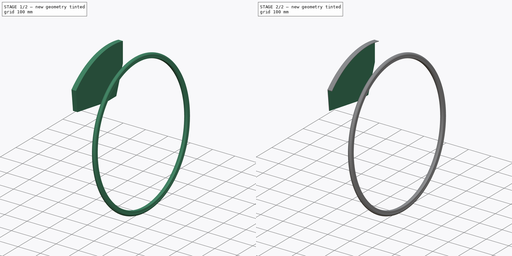
[diagram: build sequence overview — one tinted view per stage of 2, left to right]
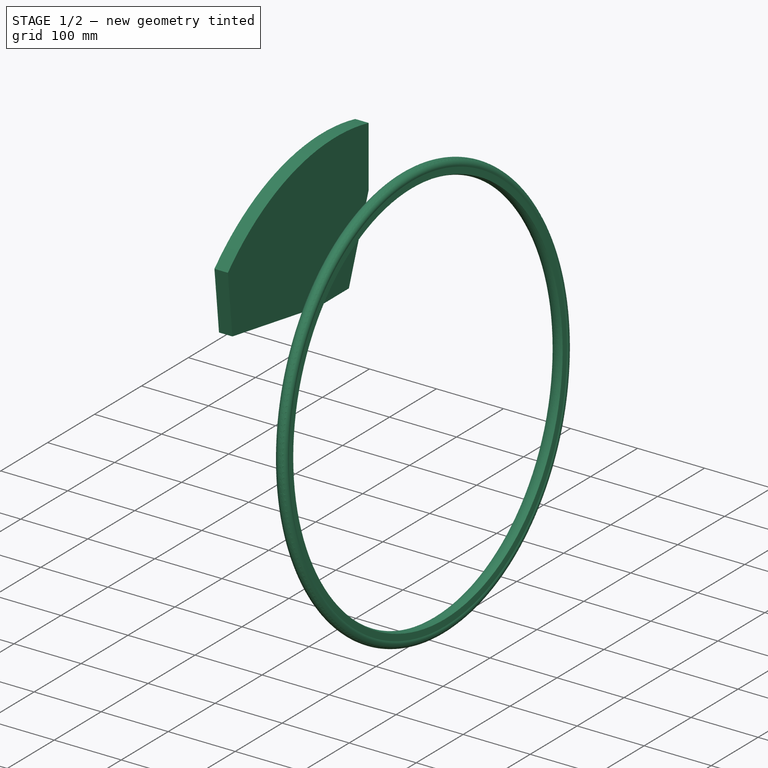
[diagram: stage 1 of 2 — iso view after this stage's code; geometry added in this stage tinted green]
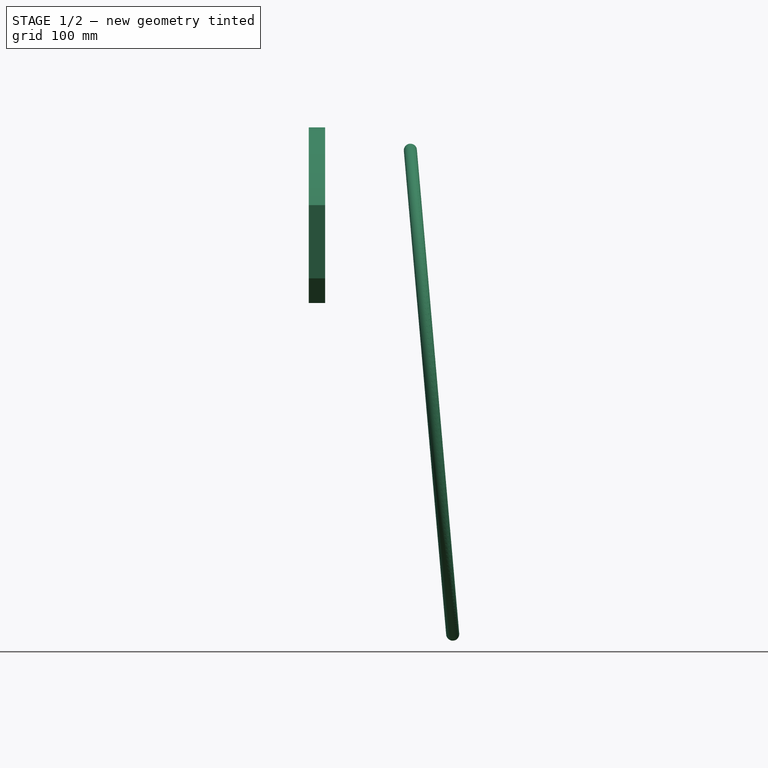
[diagram: stage 1 of 2 — front view after this stage's code; geometry added in this stage tinted green]
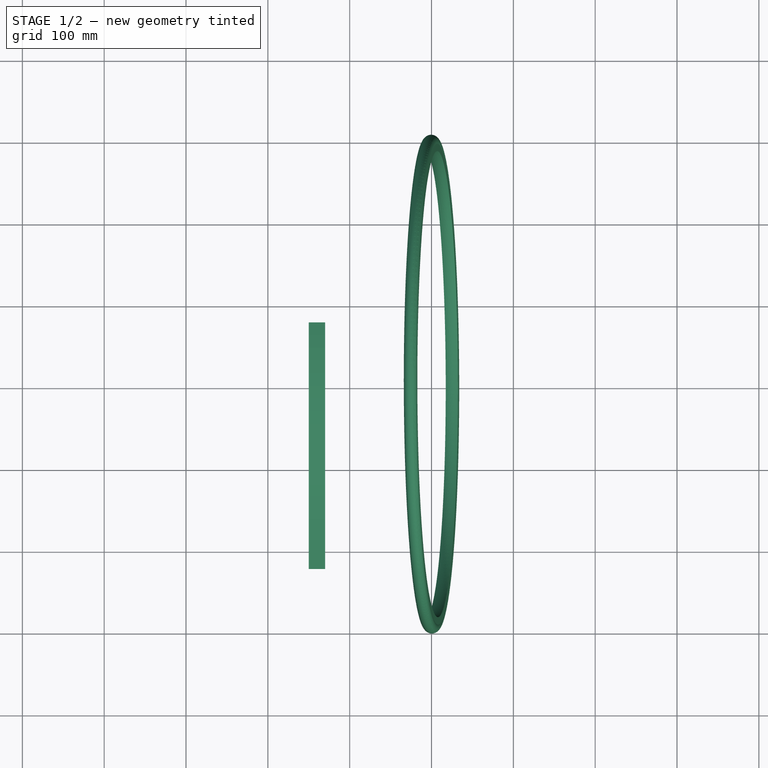
[diagram: stage 1 of 2 — top view after this stage's code; geometry added in this stage tinted green]
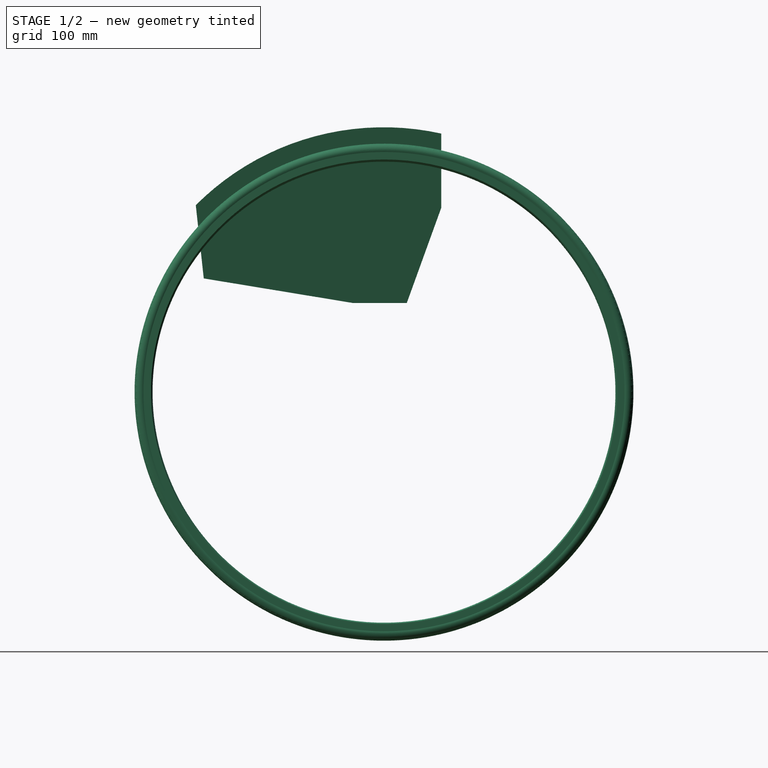
[diagram: stage 1 of 2 — right view after this stage's code; geometry added in this stage tinted green]
FCSTD DOCUMENT  (FreeCAD 2021.0205R23662 +3201 (Git))
Label: ToyWheelchair_01
License: All rights reserved
LicenseURL: http://en.wikipedia.org/wiki/All_rights_reserved
objects: Sketcher::SketchObject×5, PartDesign::Body×3, PartDesign::ShapeBinder×2, PartDesign::Plane×1, PartDesign::Pad×1, PartDesign::Thickness×1, PartDesign::Revolution×1
note: 20 computed .brp shape members not serialized (recipe doc carries the construction recipe); baked Part::Feature solids carry a one-line shape summary decoded from their .brp

FEATURE [Sketcher::SketchObject] Sketch001  label="Sketch.Wheel.Angle"
  FullyConstrained = true
  MapMode = 5
  Placement = pos=(0,0,0) rot=(1,0,0;1.5708rad)
  Support = -> [XZ_Plane]
  expr: Constraints[6] = 24 * 25.4
  sketch-geometry (3):
    g0: LineSegment StartX=326.565 StartY=0 StartZ=0 EndX=273.435 EndY=607.28 EndZ=0
    g1: Circle [constr] CenterX=300 CenterY=303.64 CenterZ=0 NormalX=0 NormalY=0 NormalZ=1 AngleXU=0 Radius=304.8
    g2: GeomPoint [constr] X=273.435 Y=607.28 Z=0
  constraints (8):
    c: PointOnObject(g0,g-1)
    c: PointOnObject(g1,g0)
    c: PointOnObject(g0,g1)
    c: PointOnObject(g0,g1)
    c: DistanceX(g-1,g1) = 300
    c: Angle(g-2,g0) = 0.0872665
    c: Distance(g0) = 609.6
    c: Coincident(g2,g0)
FEATURE [Sketcher::SketchObject] Sketch  label="MASTER.Sketch"
  ExternalGeometry = -> [Sketch001]
  FullyConstrained = false
  MapMode = 5
  Placement = pos=(0,0,0) rot=(0.57735,0.57735,0.57735;2.0944rad)
  Support = -> [YZ_Plane]
  expr: Constraints[7] = 24 * 25.4
  sketch-geometry (21):
    g0: Circle CenterX=0 CenterY=303.64 CenterZ=0 NormalX=0 NormalY=0 NormalZ=1 AngleXU=0 Radius=2.83622
    g1: Ellipse CenterX=0 CenterY=303.64 CenterZ=0 NormalX=0 NormalY=0 NormalZ=1 MajorRadius=304.8 MinorRadius=303.64 AngleXU=-3.14159
    g2: LineSegment [constr] StartX=-304.8 StartY=303.64 StartZ=0 EndX=304.8 EndY=303.64 EndZ=0
    g3: LineSegment [constr] StartX=2.09e-13 StartY=-2e-16 StartZ=0 EndX=-2.09e-13 EndY=607.28 EndZ=0
    g4: GeomPoint [constr] X=-26.5651 Y=303.64 Z=0
    g5: GeomPoint [constr] X=26.5651 Y=303.64 Z=0
    g6: Circle CenterX=-450 CenterY=60 CenterZ=0 NormalX=0 NormalY=0 NormalZ=1 AngleXU=0 Radius=60
    g7: LineSegment StartX=1.057e-13 StartY=150 StartZ=0 EndX=-450 EndY=150 EndZ=0
    g8: LineSegment StartX=-450 StartY=60 StartZ=0 EndX=-450 EndY=150 EndZ=0
    g9: LineSegment StartX=-204.998 StartY=498.093 StartZ=0 EndX=95.0015 EndY=498.093 EndZ=0
    g10: LineSegment StartX=95.0015 StartY=498.093 StartZ=0 EndX=95.0015 EndY=488.093 EndZ=0
    g11: LineSegment StartX=95.0015 StartY=488.093 StartZ=0 EndX=-204.998 EndY=488.093 EndZ=0
    g12: LineSegment StartX=-204.998 StartY=488.093 StartZ=0 EndX=-204.998 EndY=498.093 EndZ=0
    g13: LineSegment StartX=98.3266 StartY=527.047 StartZ=0 EndX=150.421 EndY=822.489 EndZ=0
    g14: LineSegment StartX=150.421 StartY=822.489 StartZ=0 EndX=160.269 EndY=820.753 EndZ=0
    g15: LineSegment StartX=160.269 StartY=820.753 StartZ=0 EndX=108.175 EndY=525.31 EndZ=0
    g16: LineSegment StartX=108.175 StartY=525.31 StartZ=0 EndX=98.3266 EndY=527.047 EndZ=0
    g17: LineSegment StartX=304.8 StartY=303.64 StartZ=0 EndX=0 EndY=303.64 EndZ=0
    g18: LineSegment StartX=0 StartY=303.64 StartZ=0 EndX=0 EndY=607.28 EndZ=0
    g19: LineSegment StartX=0 StartY=607.28 StartZ=0 EndX=304.8 EndY=607.28 EndZ=0
    g20: LineSegment StartX=304.8 StartY=607.28 StartZ=0 EndX=304.8 EndY=303.64 EndZ=0
  constraints (45):
    c: PointOnObject(g0,g-2)
    c: InternalAlignment(g2-g5 -> g1) x4
    c: Coincident(g1,g0)
    c: PointOnObject(g-1,g1)
    c: Distance(g2) = 609.6
    c: Coincident(g3,g-3)
    c: Tangent(g6,g-1)
    c: PointOnObject(g7,g3)
    c: Horizontal(g7)
    c: Coincident(g8,g6)
    c: Coincident(g8,g7)
    c: Vertical(g8)
    c: Coincident(g9,g10)
    c: Coincident(g10,g11)
    c: Coincident(g11,g12)
    c: Coincident(g12,g9)
    c: Horizontal(g9)
    c: Horizontal(g11)
    c: Vertical(g10)
    c: Vertical(g12)
    c: Coincident(g13,g14)
    c: Coincident(g14,g15)
    c: Coincident(g15,g16)
    c: Coincident(g16,g13)
    c: Equal(g10,g16)
    c: Perpendicular(g16,g13)
    c: Perpendicular(g14,g15)
    c: Perpendicular(g16,g15)
    c: Distance(g16) = 10
    c: Angle(g3,g13) = 2.96706
    c: Distance(g15) = 300
    c: Distance(g11) = 300
    c: Diameter(g6) = 120
    c: DistanceX(g7,g7) = 450
    c: DistanceY(g-1,g7) = 150
    c: Coincident(g17,g18)
    c: Coincident(g18,g19)
    c: Coincident(g19,g20)
    c: Coincident(g20,g17)
    c: Horizontal(g17)
    c: Horizontal(g19)
    c: Vertical(g18)
    c: Vertical(g20)
    c: Coincident(g17,g2)
    c: Coincident(g18,g-3)
FEATURE [PartDesign::Body] Body  label="MASTER.Body"
  AutoGroupSolids = false
  ExportMode = 0
  Group = -> [Sketch001,Sketch]
  Origin = -> Origin
  _ExportChildren = -> [Sketch001,Sketch]
  _GroupVersion = 1
FEATURE [PartDesign::ShapeBinder] ShapeBinder
  Placement = pos=(0,0,0) rot=(0.57735,0.57735,0.57735;2.0944rad)
  Support = -> [Sketch]
  TraceSupport = false
FEATURE [PartDesign::Plane] DatumPlane
  AttachmentOffset = pos=(0,0,150) rot=(0,0,1;0rad)
  Length = 814.8
  MapMode = 5
  MinimumLength = 10
  MinimumWidth = 10
  Placement = pos=(150,-3.33e-14,3.33e-14) rot=(0.57735,0.57735,0.57735;2.0944rad)
  ResizeMode = 0
  Support = -> [YZ_Plane001]
  Width = 880.598
FEATURE [Sketcher::SketchObject] Sketch002
  ExternalGeometry = -> [ShapeBinder]
  FullyConstrained = false
  MapMode = 5
  Placement = pos=(150,-3.33e-14,3.33e-14) rot=(0.57735,0.57735,0.57735;2.0944rad)
  Support = -> [DatumPlane]
  sketch-geometry (21):
    g0: Ellipse [constr] CenterX=0 CenterY=303.64 CenterZ=0 NormalX=0 NormalY=0 NormalZ=1 MajorRadius=304.8 MinorRadius=303.64 AngleXU=0
    g1: LineSegment [constr] StartX=304.8 StartY=303.64 StartZ=0 EndX=-304.8 EndY=303.64 EndZ=0
    g2: LineSegment [constr] StartX=5.66e-14 StartY=607.28 StartZ=0 EndX=-5.66e-14 EndY=2.274e-13 EndZ=0
    g3: GeomPoint [constr] X=26.5651 Y=303.64 Z=0
    g4: GeomPoint [constr] X=-26.5651 Y=303.64 Z=0
    g5: LineSegment [constr] StartX=0 StartY=303.64 StartZ=0 EndX=-215.812 EndY=518.061 EndZ=0
    g6: LineSegment [constr] StartX=-215.812 StartY=518.061 StartZ=0 EndX=-230 EndY=532.157 EndZ=0
    g7: LineSegment [constr] StartX=0 StartY=303.64 StartZ=0 EndX=65.6749 EndY=600.148 EndZ=0
    g8: LineSegment [constr] StartX=65.6749 StartY=600.148 StartZ=0 EndX=70 EndY=619.675 EndZ=0
    g9: GeomPoint [constr] X=70 Y=619.675 Z=0
    g10: GeomPoint [constr] X=-230 Y=532.157 Z=0
    g11: ArcOfEllipse CenterX=0 CenterY=303.64 CenterZ=0 NormalX=0 NormalY=0 NormalZ=1 MajorRadius=324.434 MinorRadius=323.694 AngleXU=-0.217992 StartAngle=1.57081 EndAngle=2.57639
    g12: LineSegment [constr] StartX=316.756 StartY=233.475 StartZ=0 EndX=-316.756 EndY=373.805 EndZ=0
    g13: LineSegment [constr] StartX=70.0051 StartY=619.674 StartZ=0 EndX=-70.0051 EndY=-12.3933 EndZ=0
    g14: GeomPoint [constr] X=21.3854 Y=298.903 Z=0
    g15: GeomPoint [constr] X=-21.3854 Y=308.377 Z=0
    g16: LineSegment StartX=70 StartY=619.675 StartZ=0 EndX=70 EndY=529.049 EndZ=0
    g17: LineSegment StartX=70 StartY=529.049 StartZ=0 EndX=27.8628 EndY=412.687 EndZ=0
    g18: LineSegment StartX=27.8628 StartY=412.687 StartZ=0 EndX=-38.3235 EndY=412.687 EndZ=0
    g19: LineSegment StartX=-38.3235 StartY=412.687 StartZ=0 EndX=-220.26 EndY=442.644 EndZ=0
    g20: LineSegment StartX=-220.26 StartY=442.644 StartZ=0 EndX=-230 EndY=532.157 EndZ=0
  constraints (31):
    c: InternalAlignment(g1-g4 -> g0) x4
    c: Coincident(g0,g-7)
    c: PointOnObject(g-7,g0)
    c: PointOnObject(g-5,g0)
    c: PointOnObject(g1,g-7)
    c: Coincident(g5,g-7)
    c: PointOnObject(g5,g0)
    c: Coincident(g6,g5)
    c: Coincident(g7,g-7)
    c: PointOnObject(g7,g0)
    c: Coincident(g8,g7)
    c: Parallel(g8,g7)
    c: Parallel(g5,g6)
    c: Distance(g6) = 20
    c: Distance(g8) = 20
    c: DistanceX(g-7,g8) = 70
    c: DistanceX(g6,g-7) = 230
    c: Coincident(g9,g8)
    c: Coincident(g10,g6)
    c: InternalAlignment(g12-g15 -> g11) x4
    c: Coincident(g11,g-7)
    c: Coincident(g11,g6)
    c: Coincident(g11,g8)
    c: Coincident(g16,g11)
    c: Vertical(g16)
    c: Coincident(g17,g16)
    c: Coincident(g17,g18)
    c: Horizontal(g18)
    c: Coincident(g18,g19)
    c: Coincident(g19,g20)
    c: Coincident(g20,g11)
FEATURE [PartDesign::Pad] Pad
  ClaimChildren = false
  Direction = (1,1,1)
  Fit = 0
  FitJoin = 0
  InnerFit = 0
  InnerFitJoin = 0
  InnerTaperAngle = 0
  InnerTaperAngleRev = 0
  Length = 20
  Length2 = 100
  NewSolid = false
  Placement = pos=(150,-3.33e-14,3.33e-14) rot=(0.57735,0.57735,0.57735;2.0944rad)
  Profile = -> Sketch002
  Suppress = false
  Type = 0
FEATURE [PartDesign::Body] Body001  label="Body.SIdePanel"
  AutoGroupSolids = false
  ExportMode = 0
  Group = -> [ShapeBinder,DatumPlane,Sketch002,Pad,Thickness]
  Origin = -> Origin001
  Tip = -> Thickness
  _ExportChildren = -> [ShapeBinder,DatumPlane,Pad,Thickness]
  _GroupVersion = 1
FEATURE [PartDesign::ShapeBinder] ShapeBinder001
  Placement = pos=(0,0,0) rot=(1,0,0;1.5708rad)
  Support = -> [Sketch001]
  TraceSupport = false
FEATURE [Sketcher::SketchObject] Sketch003
  ExternalGeometry = -> [ShapeBinder001]
  FullyConstrained = true
  MapMode = 5
  Placement = pos=(0,0,0) rot=(1,0,0;1.5708rad)
  Support = -> [XZ_Plane002]
  sketch-geometry (8):
    g0: Circle [constr] CenterX=300 CenterY=303.64 CenterZ=0 NormalX=0 NormalY=0 NormalZ=1 AngleXU=0 Radius=304.8
    g1: ArcOfCircle CenterX=274.132 CenterY=599.311 CenterZ=0 NormalX=0 NormalY=0 NormalZ=1 AngleXU=0 Radius=8 StartAngle=6.01503 EndAngle=9.86747
    g2: LineSegment StartX=266.903 StartY=595.884 StartZ=0 EndX=267.707 EndY=586.703 EndZ=0
    g3: LineSegment StartX=281.846 StartY=597.191 StartZ=0 EndX=282.65 EndY=588.01 EndZ=0
    g4: ArcOfCircle CenterX=274.04 CenterY=600.369 CenterZ=0 NormalX=0 NormalY=0 NormalZ=1 AngleXU=0 Radius=15.0625 StartAngle=4.27845 EndAngle=5.32086
    g5: LineSegment [constr] StartX=267.707 StartY=586.703 StartZ=0 EndX=282.65 EndY=588.01 EndZ=0
    g6: GeomPoint [constr] X=275.178 Y=587.356 Z=0
    g7: GeomPoint [constr] X=275.352 Y=585.364 Z=0
  constraints (22):
    c: PointOnObject(g0,g-3)
    c: PointOnObject(g-3,g0)
    c: PointOnObject(g-3,g0)
    c: PointOnObject(g-3,g1)
    c: Coincident(g4,g3)
    c: Coincident(g4,g2)
    c: Symmetric(g2,g3,g-3)
    c: Parallel(g2,g-3)
    c: Parallel(g3,g-3)
    c: PointOnObject(g4,g-3)
    c: Diameter(g1) = 16
    c: Coincident(g5,g2)
    c: Coincident(g5,g3)
    c: PointOnObject(g6,g-3)
    c: PointOnObject(g6,g5)
    c: PointOnObject(g7,g4)
    c: PointOnObject(g7,g-3)
    c: Distance(g6,g7) = 2
    c: Distance(g2,g3) = 15
    c: Distance(g7,g1) = 14
    c: Coincident(g1,g3)
    c: Coincident(g1,g2)
FEATURE [Sketcher::SketchObject] Sketch004
  ExternalGeometry = -> [ShapeBinder001]
  FullyConstrained = true
  MapMode = 5
  Placement = pos=(0,0,0) rot=(1,0,0;1.5708rad)
  Support = -> [XZ_Plane002]
  sketch-geometry (2):
    g0: Circle [constr] CenterX=300 CenterY=303.64 CenterZ=0 NormalX=0 NormalY=0 NormalZ=1 AngleXU=0 Radius=304.8
    g1: LineSegment StartX=300 StartY=303.64 StartZ=0 EndX=603.64 EndY=330.205 EndZ=0
  constraints (6):
    c: PointOnObject(g0,g-3)
    c: PointOnObject(g-3,g0)
    c: PointOnObject(g-3,g0)
    c: Coincident(g1,g0)
    c: PointOnObject(g1,g0)
    c: Perpendicular(g-3,g1)
FEATURE [PartDesign::Revolution] Revolution
  Angle = 360
  Axis = (0.996195,0,0.0871557)
  Base = (300,6.74e-14,303.64)
  ClaimChildren = false
  Fit = 0
  FitJoin = 0
  InnerFit = 0
  InnerFitJoin = 0
  NewSolid = false
  Placement = pos=(0,0,0) rot=(1,0,0;1.5708rad)
  Profile = -> Sketch003
  ReferenceAxis = -> Sketch004 [Edge1]
  Reversed = true
  Suppress = false
FEATURE [PartDesign::Body] Body002  label="Body.Wheel"
  AutoGroupSolids = false
  ExportMode = 0
  Group = -> [ShapeBinder001,Sketch003,Sketch004,Revolution]
  Origin = -> Origin002
  Tip = -> Revolution
  _ExportChildren = -> [ShapeBinder001,Sketch004,Revolution]
  _GroupVersion = 1
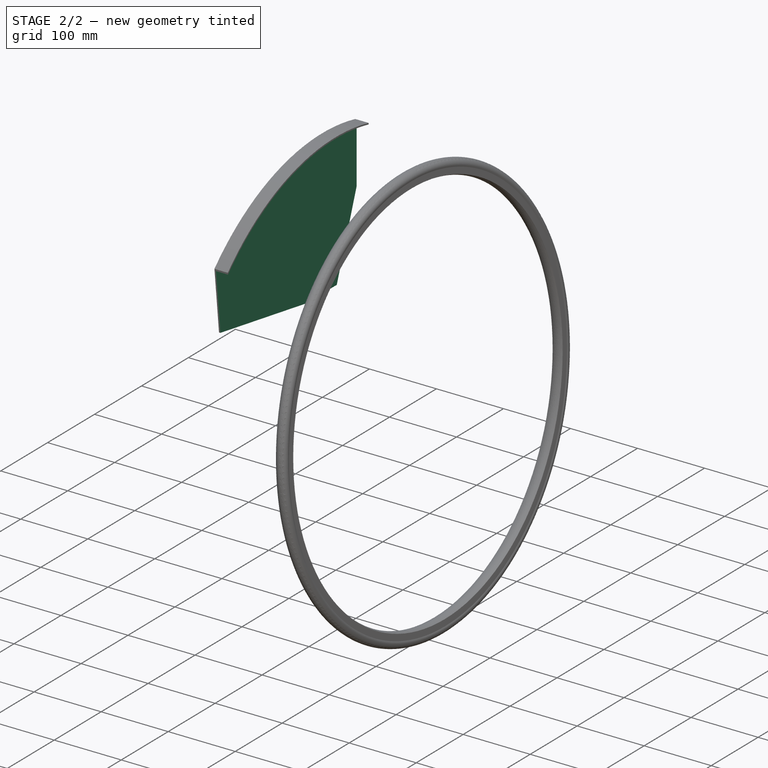
[diagram: stage 2 of 2 — iso view after this stage's code; geometry added in this stage tinted green]
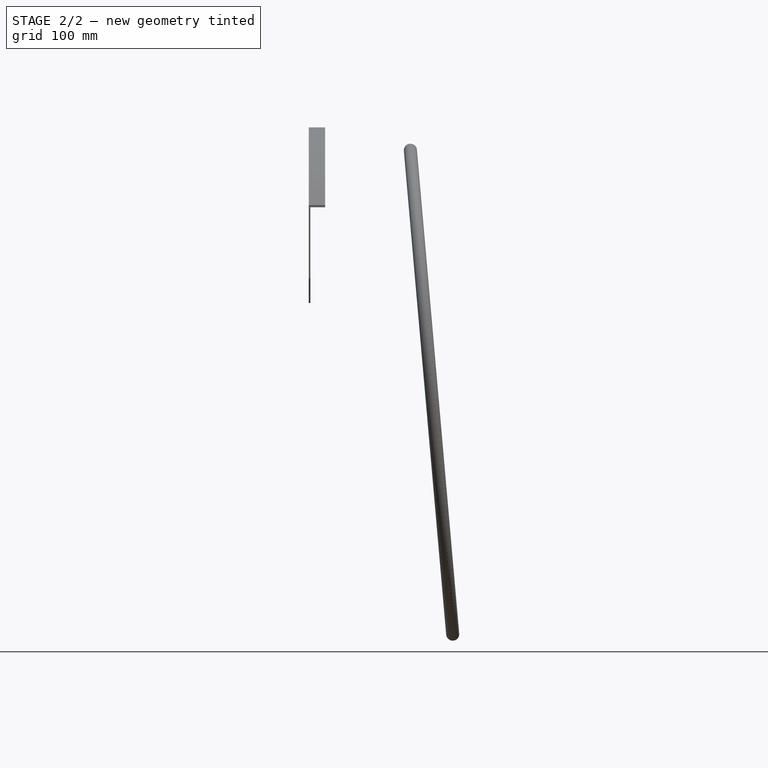
[diagram: stage 2 of 2 — front view after this stage's code; geometry added in this stage tinted green]
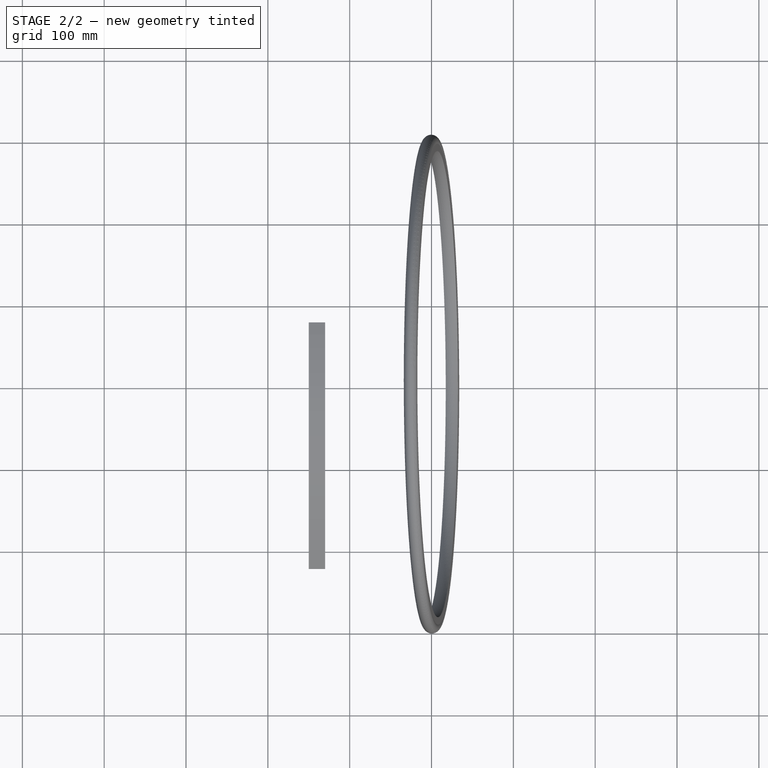
[diagram: stage 2 of 2 — top view after this stage's code; geometry added in this stage tinted green]
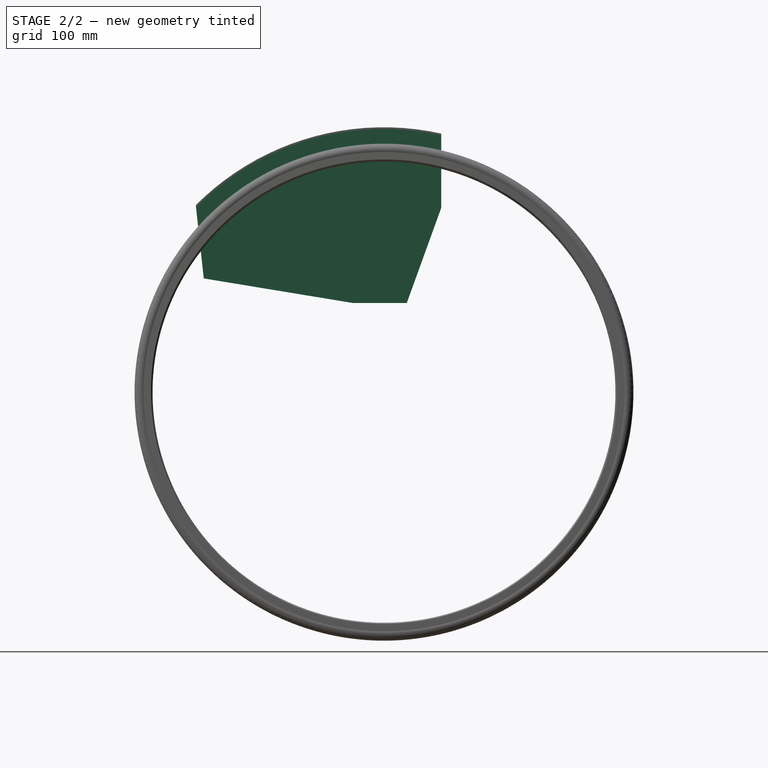
[diagram: stage 2 of 2 — right view after this stage's code; geometry added in this stage tinted green]
FEATURE [PartDesign::Thickness] Thickness
  Base = -> Pad [Face8,Face2,Face3,Face4,Face5,Face6]
  BaseFeature = -> Pad
  Intersection = false
  Join = 1
  Mode = 0
  NewSolid = false
  Reversed = true
  SupportTransform = false
  Suppress = false
  Value = 2
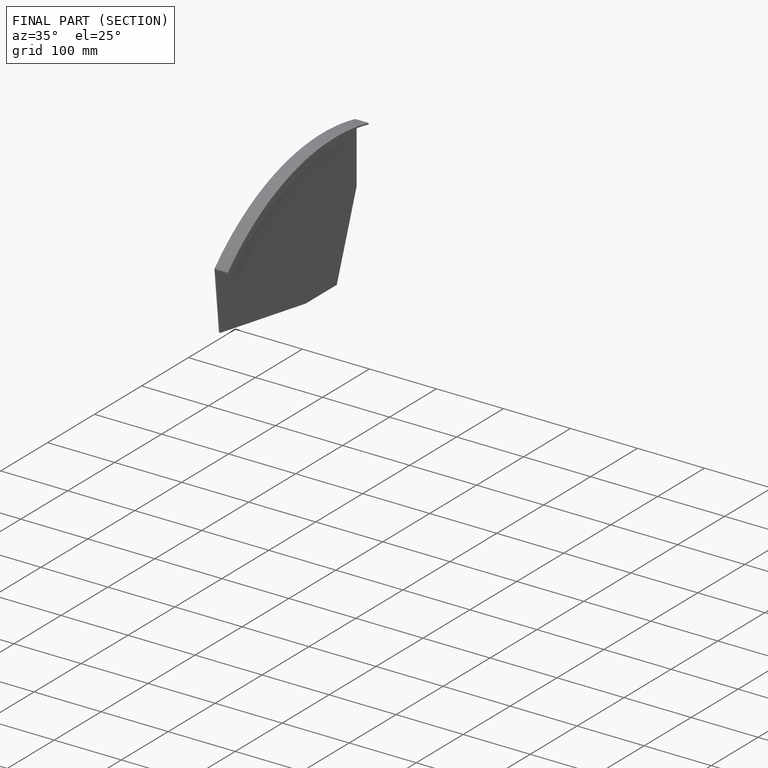
[diagram: finished part — half-section view (interior)]
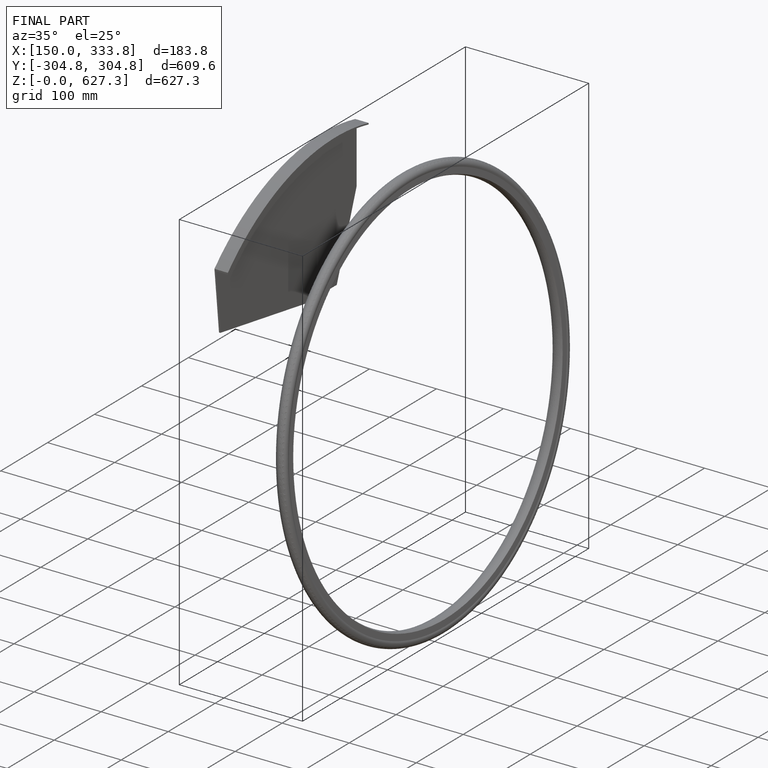
[diagram: finished part — iso view with bounding-box wireframe]
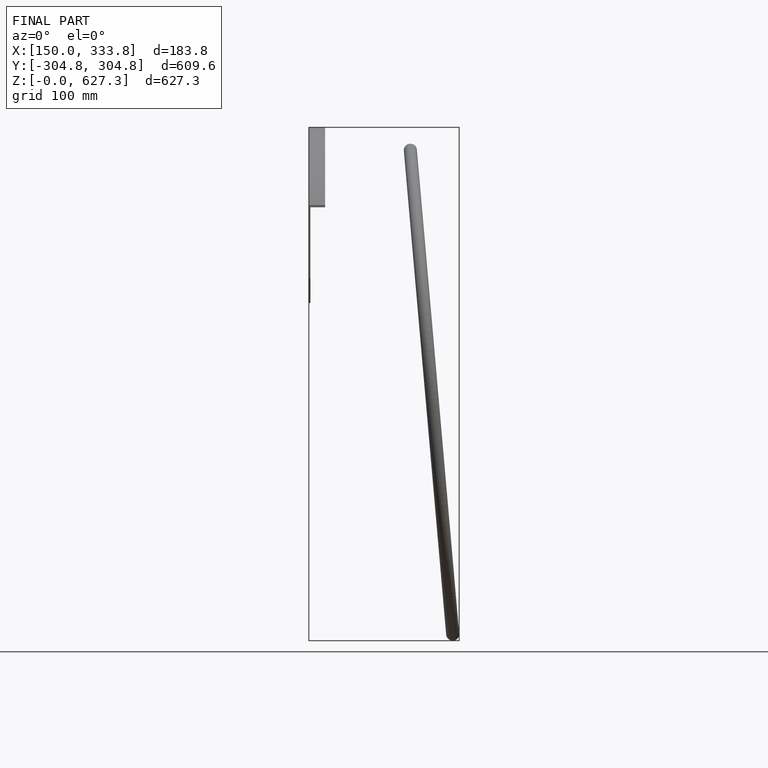
[diagram: finished part — front view with bounding-box wireframe]
